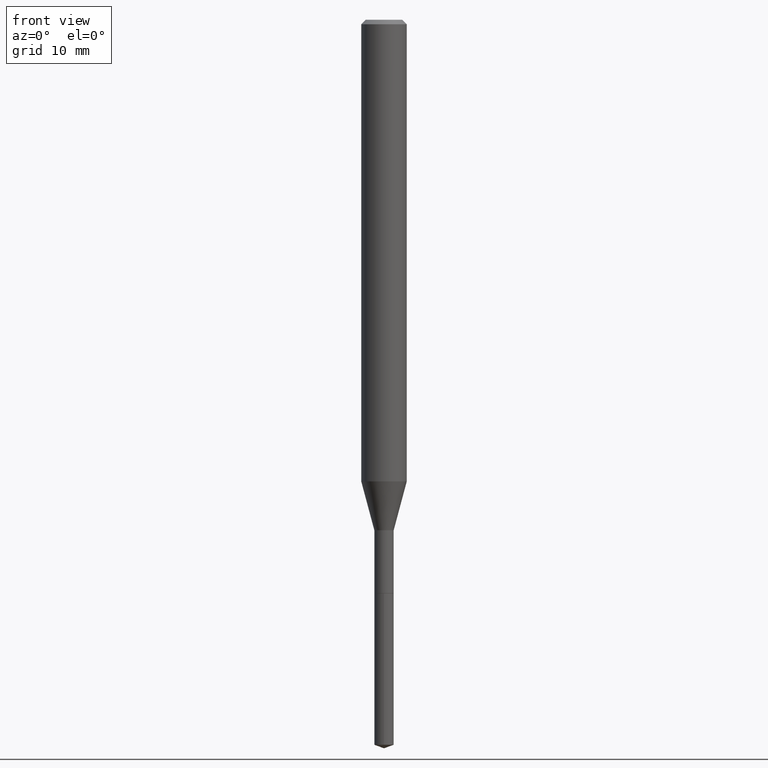
[diagram: clean part render]
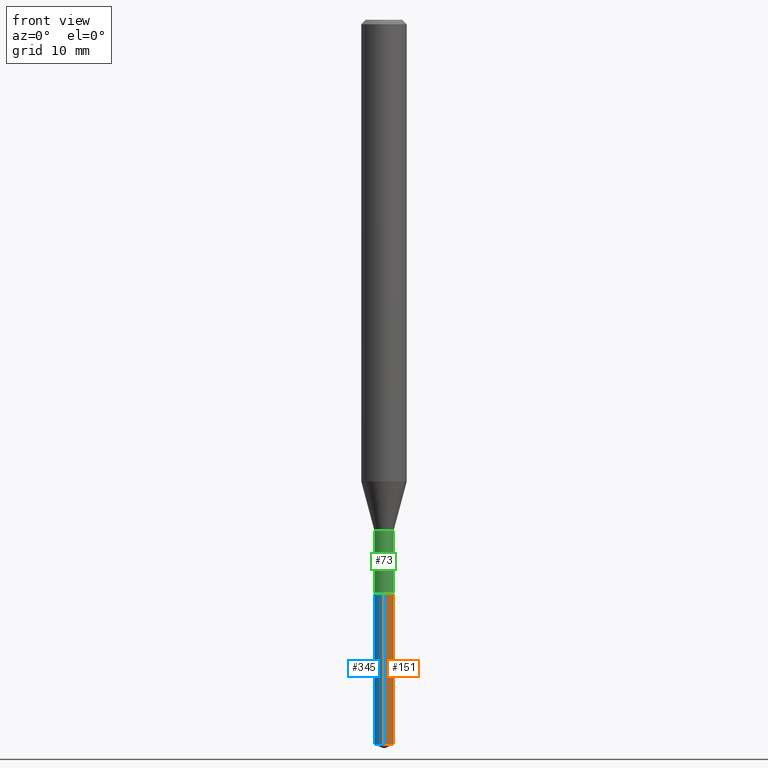
[diagram: same view with three faces highlighted in distinct colors, each labeled with its STEP entity id]
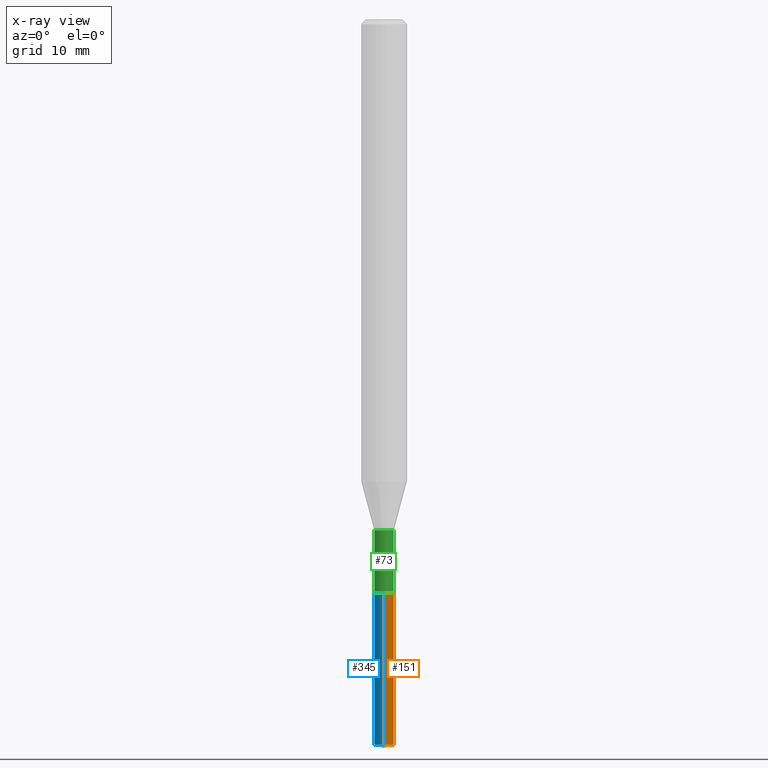
[diagram: x-ray of the same camera — body ghosted, the three highlighted faces saturated]
A machine part, front view with three faces highlighted in distinct colors.
The next image is the same camera in x-ray (body ghosted, the three faces saturated) — at least one of them is partly hidden behind the body in this view.
Their STEP definitions:

[orange] entity #151 — the highlighted cylindrical surface (edge-blend (fillet) strip) has radius 0.8496 mm, axis along (-0, 0, 1).
#7 = AXIS2_PLACEMENT_3D ( 'NONE', #42, #460, #79 ) ;
#13 = AXIS2_PLACEMENT_3D ( 'NONE', #165, #354, #420 ) ;
#24 = VECTOR ( 'NONE', #376, 39.37007874015748143 ) ;
#42 = CARTESIAN_POINT ( 'NONE',  ( 6.132138657409497582E-29, -8.754885760387229464E-15, -2.507525195663795614 ) ) ;
#59 = ORIENTED_EDGE ( 'NONE', *, *, #281, .T. ) ;
#62 = VERTEX_POINT ( 'NONE', #227 ) ;
#79 = DIRECTION ( 'NONE',  ( -6.982962677686264344E-15, -1.000000000000000000, 0.000000000000000000 ) ) ;
#84 = CARTESIAN_POINT ( 'NONE',  ( -2.335801015685570442E-16, -0.03345000000000692558, -1.984299999999999953 ) ) ;
#91 = ORIENTED_EDGE ( 'NONE', *, *, #489, .F. ) ;
#113 = CARTESIAN_POINT ( 'NONE',  ( -2.335801015685570442E-16, -0.03345000000000692558, -1.984299999999999953 ) ) ;
#129 = EDGE_CURVE ( 'NONE', #62, #438, #223, .T. ) ;
#151 = ADVANCED_FACE ( 'NONE', ( #279 ), #458, .T. ) ;
#156 = VERTEX_POINT ( 'NONE', #84 ) ;
#165 = CARTESIAN_POINT ( 'NONE',  ( 4.852543752113166626E-29, -6.928146420666453587E-15, -1.984299999999999953 ) ) ;
#185 = CIRCLE ( 'NONE', #224, 0.03345000000000000057 ) ;
#212 = CARTESIAN_POINT ( 'NONE',  ( 2.376765451118020311E-16, 0.03344999999999307555, -1.984299999999999953 ) ) ;
#214 = DIRECTION ( 'NONE',  ( -6.982962677686264344E-15, -1.000000000000000000, 0.000000000000000000 ) ) ;
#223 = CIRCLE ( 'NONE', #7, 0.03345000000000000057 ) ;
#224 = AXIS2_PLACEMENT_3D ( 'NONE', #366, #467, #214 ) ;
#227 = CARTESIAN_POINT ( 'NONE',  ( -2.335801015685441759E-16, -0.03345000000000874357, -2.507525195663795614 ) ) ;
#234 = ORIENTED_EDGE ( 'NONE', *, *, #129, .T. ) ;
#249 = ORIENTED_EDGE ( 'NONE', *, *, #378, .F. ) ;
#258 = CARTESIAN_POINT ( 'NONE',  ( 2.376765451118148994E-16, 0.03344999999999307555, -1.984299999999999953 ) ) ;
#279 = FACE_OUTER_BOUND ( 'NONE', #433, .T. ) ;
#281 = EDGE_CURVE ( 'NONE', #438, #475, #398, .T. ) ;
#323 = CARTESIAN_POINT ( 'NONE',  ( 2.376765451118147515E-16, 0.03344999999999123674, -2.507525195663795614 ) ) ;
#328 = VECTOR ( 'NONE', #473, 39.37007874015748143 ) ;
#354 = DIRECTION ( 'NONE',  ( -2.445591144885440366E-29, 3.491306142861223975E-15, 1.000000000000000000 ) ) ;
#366 = CARTESIAN_POINT ( 'NONE',  ( 4.852543752113166626E-29, -6.928146420666453587E-15, -1.984299999999999953 ) ) ;
#376 = DIRECTION ( 'NONE',  ( -2.445591144885440366E-29, 3.491306142861223581E-15, 1.000000000000000000 ) ) ;
#378 = EDGE_CURVE ( 'NONE', #156, #475, #185, .T. ) ;
#381 = LINE ( 'NONE', #113, #24 ) ;
#398 = LINE ( 'NONE', #212, #328 ) ;
#420 = DIRECTION ( 'NONE',  ( -6.982962677686264344E-15, -1.000000000000000000, 0.000000000000000000 ) ) ;
#433 = EDGE_LOOP ( 'NONE', ( #234, #59, #249, #91 ) ) ;
#438 = VERTEX_POINT ( 'NONE', #323 ) ;
#458 = CYLINDRICAL_SURFACE ( 'NONE', #13, 0.03345000000000000057 ) ;
#460 = DIRECTION ( 'NONE',  ( -2.445591144885440366E-29, 3.491306142861223975E-15, 1.000000000000000000 ) ) ;
#467 = DIRECTION ( 'NONE',  ( -2.445591144885440366E-29, 3.491306142861223975E-15, 1.000000000000000000 ) ) ;
#473 = DIRECTION ( 'NONE',  ( -2.445591144885440366E-29, 3.491306142861223581E-15, 1.000000000000000000 ) ) ;
#475 = VERTEX_POINT ( 'NONE', #258 ) ;
#489 = EDGE_CURVE ( 'NONE', #62, #156, #381, .T. ) ;

[blue] entity #345 — the highlighted cylindrical surface (edge-blend (fillet) strip) has radius 0.8496 mm, axis along (-0, 0, 1).
#24 = VECTOR ( 'NONE', #376, 39.37007874015748143 ) ;
#52 = ORIENTED_EDGE ( 'NONE', *, *, #281, .F. ) ;
#57 = CYLINDRICAL_SURFACE ( 'NONE', #479, 0.03345000000000000057 ) ;
#62 = VERTEX_POINT ( 'NONE', #227 ) ;
#76 = CIRCLE ( 'NONE', #302, 0.03345000000000000057 ) ;
#84 = CARTESIAN_POINT ( 'NONE',  ( -2.335801015685570442E-16, -0.03345000000000692558, -1.984299999999999953 ) ) ;
#113 = CARTESIAN_POINT ( 'NONE',  ( -2.335801015685570442E-16, -0.03345000000000692558, -1.984299999999999953 ) ) ;
#125 = CIRCLE ( 'NONE', #453, 0.03345000000000000057 ) ;
#156 = VERTEX_POINT ( 'NONE', #84 ) ;
#178 = DIRECTION ( 'NONE',  ( -6.982962677686264344E-15, -1.000000000000000000, 0.000000000000000000 ) ) ;
#179 = EDGE_LOOP ( 'NONE', ( #52, #247, #487, #222 ) ) ;
#199 = EDGE_CURVE ( 'NONE', #438, #62, #125, .T. ) ;
#212 = CARTESIAN_POINT ( 'NONE',  ( 2.376765451118020311E-16, 0.03344999999999307555, -1.984299999999999953 ) ) ;
#222 = ORIENTED_EDGE ( 'NONE', *, *, #448, .F. ) ;
#227 = CARTESIAN_POINT ( 'NONE',  ( -2.335801015685441759E-16, -0.03345000000000874357, -2.507525195663795614 ) ) ;
#247 = ORIENTED_EDGE ( 'NONE', *, *, #199, .T. ) ;
#250 = DIRECTION ( 'NONE',  ( -2.445591144885440366E-29, 3.491306142861223975E-15, 1.000000000000000000 ) ) ;
#258 = CARTESIAN_POINT ( 'NONE',  ( 2.376765451118148994E-16, 0.03344999999999307555, -1.984299999999999953 ) ) ;
#281 = EDGE_CURVE ( 'NONE', #438, #475, #398, .T. ) ;
#286 = CARTESIAN_POINT ( 'NONE',  ( 4.852543752113166626E-29, -6.928146420666453587E-15, -1.984299999999999953 ) ) ;
#302 = AXIS2_PLACEMENT_3D ( 'NONE', #286, #362, #432 ) ;
#320 = CARTESIAN_POINT ( 'NONE',  ( 6.132138657409497582E-29, -8.754885760387229464E-15, -2.507525195663795614 ) ) ;
#323 = CARTESIAN_POINT ( 'NONE',  ( 2.376765451118147515E-16, 0.03344999999999123674, -2.507525195663795614 ) ) ;
#328 = VECTOR ( 'NONE', #473, 39.37007874015748143 ) ;
#345 = ADVANCED_FACE ( 'NONE', ( #436 ), #57, .T. ) ;
#350 = DIRECTION ( 'NONE',  ( -2.445591144885440366E-29, 3.491306142861223975E-15, 1.000000000000000000 ) ) ;
#359 = CARTESIAN_POINT ( 'NONE',  ( 4.852543752113166626E-29, -6.928146420666453587E-15, -1.984299999999999953 ) ) ;
#362 = DIRECTION ( 'NONE',  ( -2.445591144885440366E-29, 3.491306142861223975E-15, 1.000000000000000000 ) ) ;
#376 = DIRECTION ( 'NONE',  ( -2.445591144885440366E-29, 3.491306142861223581E-15, 1.000000000000000000 ) ) ;
#381 = LINE ( 'NONE', #113, #24 ) ;
#385 = DIRECTION ( 'NONE',  ( -6.982962677686264344E-15, -1.000000000000000000, 0.000000000000000000 ) ) ;
#398 = LINE ( 'NONE', #212, #328 ) ;
#432 = DIRECTION ( 'NONE',  ( -6.982962677686264344E-15, -1.000000000000000000, 0.000000000000000000 ) ) ;
#436 = FACE_OUTER_BOUND ( 'NONE', #179, .T. ) ;
#438 = VERTEX_POINT ( 'NONE', #323 ) ;
#448 = EDGE_CURVE ( 'NONE', #475, #156, #76, .T. ) ;
#453 = AXIS2_PLACEMENT_3D ( 'NONE', #320, #350, #385 ) ;
#473 = DIRECTION ( 'NONE',  ( -2.445591144885440366E-29, 3.491306142861223581E-15, 1.000000000000000000 ) ) ;
#475 = VERTEX_POINT ( 'NONE', #258 ) ;
#479 = AXIS2_PLACEMENT_3D ( 'NONE', #359, #250, #178 ) ;
#487 = ORIENTED_EDGE ( 'NONE', *, *, #489, .T. ) ;
#489 = EDGE_CURVE ( 'NONE', #62, #156, #381, .T. ) ;

[green] entity #73 — the highlighted cylindrical surface (edge-blend (fillet) strip) has radius 0.8496 mm, axis along (-0, 0, 1).
#8 = VECTOR ( 'NONE', #291, 39.37007874015748143 ) ;
#11 = DIRECTION ( 'NONE',  ( -2.445468806185136597E-29, 3.491481338843145583E-15, 1.000000000000000000 ) ) ;
#40 = CIRCLE ( 'NONE', #66, 0.03344999999999999363 ) ;
#66 = AXIS2_PLACEMENT_3D ( 'NONE', #395, #11, #476 ) ;
#73 = ADVANCED_FACE ( 'NONE', ( #154 ), #343, .T. ) ;
#83 = DIRECTION ( 'NONE',  ( -2.445468806185136877E-29, 3.491481338843145188E-15, 1.000000000000000000 ) ) ;
#95 = VERTEX_POINT ( 'NONE', #424 ) ;
#101 = EDGE_LOOP ( 'NONE', ( #296, #382, #149, #422 ) ) ;
#102 = EDGE_CURVE ( 'NONE', #95, #107, #160, .T. ) ;
#107 = VERTEX_POINT ( 'NONE', #387 ) ;
#116 = AXIS2_PLACEMENT_3D ( 'NONE', #259, #194, #346 ) ;
#120 = EDGE_CURVE ( 'NONE', #305, #107, #490, .T. ) ;
#128 = CARTESIAN_POINT ( 'NONE',  ( 4.317719724200476827E-29, -6.164559451861457160E-15, -1.765599999999999836 ) ) ;
#149 = ORIENTED_EDGE ( 'NONE', *, *, #120, .T. ) ;
#152 = AXIS2_PLACEMENT_3D ( 'NONE', #128, #238, #386 ) ;
#154 = FACE_OUTER_BOUND ( 'NONE', #101, .T. ) ;
#160 = CIRCLE ( 'NONE', #152, 0.03344999999999997281 ) ;
#175 = CARTESIAN_POINT ( 'NONE',  ( -0.03344999999999999363, -6.307803520817490859E-15, -1.983800000000000008 ) ) ;
#194 = DIRECTION ( 'NONE',  ( -2.445468806185136597E-29, 3.491481338843145583E-15, 1.000000000000000000 ) ) ;
#238 = DIRECTION ( 'NONE',  ( -2.445468806185136597E-29, 3.491481338843145583E-15, 1.000000000000000000 ) ) ;
#259 = CARTESIAN_POINT ( 'NONE',  ( 0.000000000000000000, 0.000000000000000000, 0.000000000000000000 ) ) ;
#276 = EDGE_CURVE ( 'NONE', #449, #95, #471, .T. ) ;
#291 = DIRECTION ( 'NONE',  ( -2.445468806185136877E-29, 3.491481338843145188E-15, 1.000000000000000000 ) ) ;
#296 = ORIENTED_EDGE ( 'NONE', *, *, #276, .F. ) ;
#305 = VERTEX_POINT ( 'NONE', #469 ) ;
#331 = CARTESIAN_POINT ( 'NONE',  ( -0.03344999999999997975, 2.376765451117533683E-16, -1.645383787690264877E-30 ) ) ;
#343 = CYLINDRICAL_SURFACE ( 'NONE', #116, 0.03344999999999997975 ) ;
#346 = DIRECTION ( 'NONE',  ( 1.000000000000000000, -6.982962677686265922E-15, 4.876176775795935793E-29 ) ) ;
#382 = ORIENTED_EDGE ( 'NONE', *, *, #397, .T. ) ;
#384 = CARTESIAN_POINT ( 'NONE',  ( 0.03344999999999997975, -2.335801015686054605E-16, 1.631081131503739477E-30 ) ) ;
#386 = DIRECTION ( 'NONE',  ( 1.000000000000000000, -6.982962677686255667E-15, 0.000000000000000000 ) ) ;
#387 = CARTESIAN_POINT ( 'NONE',  ( 0.03344999999999997281, -6.398139553430062226E-15, -1.765599999999999836 ) ) ;
#395 = CARTESIAN_POINT ( 'NONE',  ( 4.851321017710073825E-29, -6.926400679997032083E-15, -1.983800000000000008 ) ) ;
#397 = EDGE_CURVE ( 'NONE', #449, #305, #40, .T. ) ;
#422 = ORIENTED_EDGE ( 'NONE', *, *, #102, .F. ) ;
#424 = CARTESIAN_POINT ( 'NONE',  ( -0.03344999999999997281, -6.307803520817490859E-15, -1.765599999999999836 ) ) ;
#437 = VECTOR ( 'NONE', #83, 39.37007874015748143 ) ;
#449 = VERTEX_POINT ( 'NONE', #175 ) ;
#469 = CARTESIAN_POINT ( 'NONE',  ( 0.03344999999999999363, -7.159980781565636360E-15, -1.983800000000000008 ) ) ;
#471 = LINE ( 'NONE', #331, #8 ) ;
#476 = DIRECTION ( 'NONE',  ( 1.000000000000000000, -6.982962677686251722E-15, 0.000000000000000000 ) ) ;
#490 = LINE ( 'NONE', #384, #437 ) ;